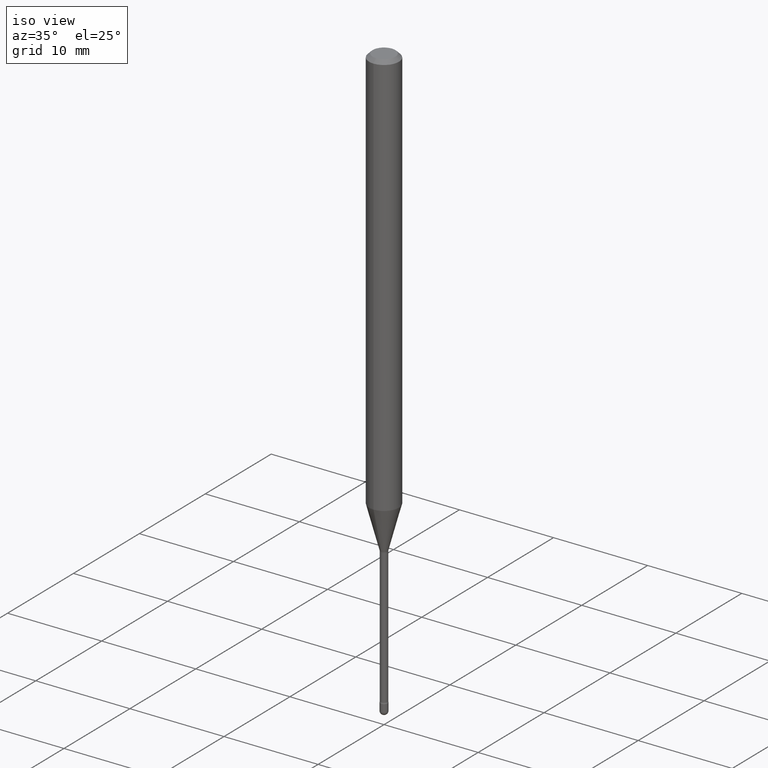
[diagram: clean part render]
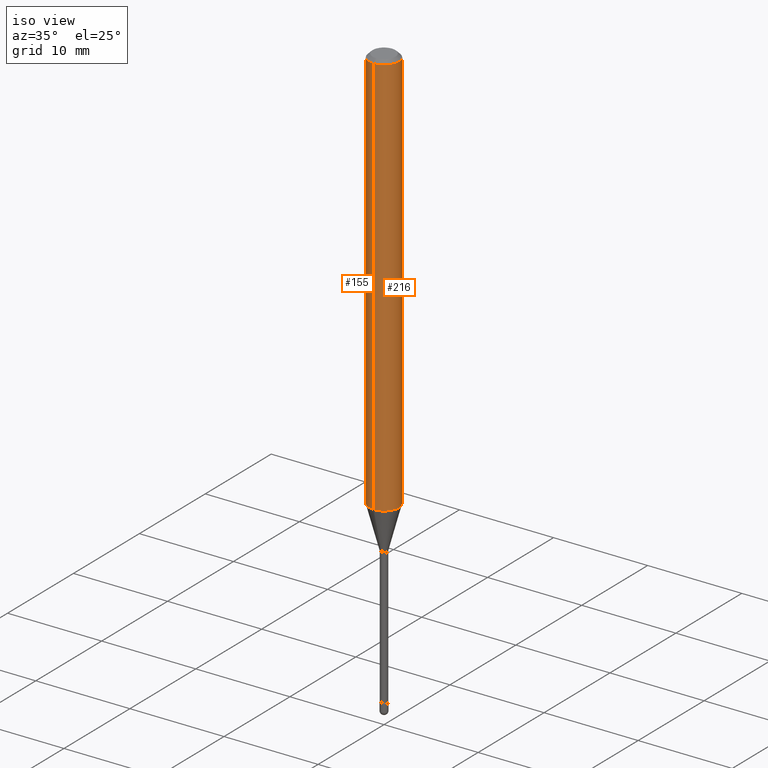
[diagram: same view with one multi-face feature highlighted, each face labeled with its STEP entity id]
A machine part, iso view. The highlighted faces form ONE feature: a constant-radius fillet chain: 2 tangent blend faces with common blend radius 1.5875 mm. The faces share edges in the B-rep.
Their STEP definitions:
[1] entity #216 (Cylinder):
#5 = DIRECTION ( 'NONE',  ( -2.445473815707476510E-29, 3.491474164922030519E-15, 1.000000000000000000 ) ) ;
#6 = DIRECTION ( 'NONE',  ( -2.445473815707476510E-29, 3.491474164922030519E-15, 1.000000000000000000 ) ) ;
#7 = AXIS2_PLACEMENT_3D ( 'NONE', #47, #6, #433 ) ;
#16 = DIRECTION ( 'NONE',  ( -2.445473815707476510E-29, 3.491474164922030519E-15, 1.000000000000000000 ) ) ;
#17 = CIRCLE ( 'NONE', #376, 0.06250000000000000000 ) ;
#40 = EDGE_LOOP ( 'NONE', ( #511, #178, #381, #75 ) ) ;
#47 = CARTESIAN_POINT ( 'NONE',  ( 4.159868743774115107E-29, -5.939165717115708195E-15, -1.701048163777072908 ) ) ;
#57 = FACE_OUTER_BOUND ( 'NONE', #40, .T. ) ;
#72 = VERTEX_POINT ( 'NONE', #434 ) ;
#75 = ORIENTED_EDGE ( 'NONE', *, *, #146, .F. ) ;
#98 = CARTESIAN_POINT ( 'NONE',  ( -4.364351673553916201E-16, -0.06250000000000000000, 6.962905341988730200E-16 ) ) ;
#102 = DIRECTION ( 'NONE',  ( -6.982962677686265922E-15, -1.000000000000000000, 3.483106191921935554E-15 ) ) ;
#104 = VECTOR ( 'NONE', #132, 39.37007874015748143 ) ;
#108 = EDGE_CURVE ( 'NONE', #183, #174, #395, .T. ) ;
#131 = VERTEX_POINT ( 'NONE', #444 ) ;
#132 = DIRECTION ( 'NONE',  ( -2.445473815707476510E-29, 3.491474164922030519E-15, 1.000000000000000000 ) ) ;
#146 = EDGE_CURVE ( 'NONE', #183, #72, #188, .T. ) ;
#161 = CYLINDRICAL_SURFACE ( 'NONE', #436, 0.06250000000000000000 ) ;
#174 = VERTEX_POINT ( 'NONE', #354 ) ;
#178 = ORIENTED_EDGE ( 'NONE', *, *, #398, .T. ) ;
#183 = VERTEX_POINT ( 'NONE', #275 ) ;
#188 = LINE ( 'NONE', #98, #104 ) ;
#196 = CARTESIAN_POINT ( 'NONE',  ( 4.440892098500625669E-16, 0.06250000000000000000, 2.598562635836191558E-16 ) ) ;
#216 = ADVANCED_FACE ( 'NONE', ( #57 ), #161, .T. ) ;
#242 = CARTESIAN_POINT ( 'NONE',  ( 3.668210723561235154E-31, -5.237211247383074400E-17, -0.01500000000000008271 ) ) ;
#275 = CARTESIAN_POINT ( 'NONE',  ( -4.364351673553500570E-16, -0.06250000000000595357, -1.701048163777072464 ) ) ;
#312 = LINE ( 'NONE', #196, #467 ) ;
#339 = CARTESIAN_POINT ( 'NONE',  ( -1.169113584055446105E-44, 1.669184350826100908E-30, 4.780733988912460139E-16 ) ) ;
#354 = CARTESIAN_POINT ( 'NONE',  ( 4.440892098501039328E-16, 0.06249999999999404643, -1.701048163777073130 ) ) ;
#376 = AXIS2_PLACEMENT_3D ( 'NONE', #242, #16, #102 ) ;
#381 = ORIENTED_EDGE ( 'NONE', *, *, #435, .F. ) ;
#395 = CIRCLE ( 'NONE', #7, 0.06250000000000000000 ) ;
#397 = DIRECTION ( 'NONE',  ( -2.445473815707476510E-29, 3.491474164922030519E-15, 1.000000000000000000 ) ) ;
#398 = EDGE_CURVE ( 'NONE', #174, #131, #312, .T. ) ;
#433 = DIRECTION ( 'NONE',  ( -6.982962677686265922E-15, -1.000000000000000000, 4.370956789862821150E-15 ) ) ;
#434 = CARTESIAN_POINT ( 'NONE',  ( -4.364351673553912750E-16, -0.06250000000000005551, -0.01499999999999986587 ) ) ;
#435 = EDGE_CURVE ( 'NONE', #72, #131, #17, .T. ) ;
#436 = AXIS2_PLACEMENT_3D ( 'NONE', #339, #5, #440 ) ;
#440 = DIRECTION ( 'NONE',  ( -6.982962677686265922E-15, -1.000000000000000000, 3.491474164922031308E-15 ) ) ;
#444 = CARTESIAN_POINT ( 'NONE',  ( 4.440892098501044258E-16, 0.06249999999999995143, -0.01500000000000030129 ) ) ;
#467 = VECTOR ( 'NONE', #397, 39.37007874015748143 ) ;
#511 = ORIENTED_EDGE ( 'NONE', *, *, #108, .T. ) ;
[2] entity #155 (Cylinder):
#8 = EDGE_CURVE ( 'NONE', #174, #183, #133, .T. ) ;
#12 = DIRECTION ( 'NONE',  ( -2.445473815707476510E-29, 3.491474164922030519E-15, 1.000000000000000000 ) ) ;
#72 = VERTEX_POINT ( 'NONE', #434 ) ;
#98 = CARTESIAN_POINT ( 'NONE',  ( -4.364351673553916201E-16, -0.06250000000000000000, 6.962905341988730200E-16 ) ) ;
#104 = VECTOR ( 'NONE', #132, 39.37007874015748143 ) ;
#131 = VERTEX_POINT ( 'NONE', #444 ) ;
#132 = DIRECTION ( 'NONE',  ( -2.445473815707476510E-29, 3.491474164922030519E-15, 1.000000000000000000 ) ) ;
#133 = CIRCLE ( 'NONE', #351, 0.06250000000000000000 ) ;
#146 = EDGE_CURVE ( 'NONE', #183, #72, #188, .T. ) ;
#155 = ADVANCED_FACE ( 'NONE', ( #517 ), #486, .T. ) ;
#159 = DIRECTION ( 'NONE',  ( -6.982962677686265922E-15, -1.000000000000000000, 3.483106191921935554E-15 ) ) ;
#174 = VERTEX_POINT ( 'NONE', #354 ) ;
#183 = VERTEX_POINT ( 'NONE', #275 ) ;
#188 = LINE ( 'NONE', #98, #104 ) ;
#196 = CARTESIAN_POINT ( 'NONE',  ( 4.440892098500625669E-16, 0.06250000000000000000, 2.598562635836191558E-16 ) ) ;
#205 = ORIENTED_EDGE ( 'NONE', *, *, #259, .F. ) ;
#245 = CIRCLE ( 'NONE', #278, 0.06250000000000000000 ) ;
#259 = EDGE_CURVE ( 'NONE', #131, #72, #245, .T. ) ;
#275 = CARTESIAN_POINT ( 'NONE',  ( -4.364351673553500570E-16, -0.06250000000000595357, -1.701048163777072464 ) ) ;
#278 = AXIS2_PLACEMENT_3D ( 'NONE', #374, #443, #159 ) ;
#290 = DIRECTION ( 'NONE',  ( -2.445473815707476510E-29, 3.491474164922030519E-15, 1.000000000000000000 ) ) ;
#312 = LINE ( 'NONE', #196, #467 ) ;
#315 = CARTESIAN_POINT ( 'NONE',  ( -1.169113584055446105E-44, 1.669184350826100908E-30, 4.780733988912460139E-16 ) ) ;
#333 = CARTESIAN_POINT ( 'NONE',  ( 4.159868743774115107E-29, -5.939165717115708195E-15, -1.701048163777072908 ) ) ;
#334 = EDGE_LOOP ( 'NONE', ( #525, #472, #345, #205 ) ) ;
#345 = ORIENTED_EDGE ( 'NONE', *, *, #146, .T. ) ;
#351 = AXIS2_PLACEMENT_3D ( 'NONE', #333, #290, #536 ) ;
#354 = CARTESIAN_POINT ( 'NONE',  ( 4.440892098501039328E-16, 0.06249999999999404643, -1.701048163777073130 ) ) ;
#374 = CARTESIAN_POINT ( 'NONE',  ( 3.668210723561235154E-31, -5.237211247383074400E-17, -0.01500000000000008271 ) ) ;
#397 = DIRECTION ( 'NONE',  ( -2.445473815707476510E-29, 3.491474164922030519E-15, 1.000000000000000000 ) ) ;
#398 = EDGE_CURVE ( 'NONE', #174, #131, #312, .T. ) ;
#434 = CARTESIAN_POINT ( 'NONE',  ( -4.364351673553912750E-16, -0.06250000000000005551, -0.01499999999999986587 ) ) ;
#443 = DIRECTION ( 'NONE',  ( -2.445473815707476510E-29, 3.491474164922030519E-15, 1.000000000000000000 ) ) ;
#444 = CARTESIAN_POINT ( 'NONE',  ( 4.440892098501044258E-16, 0.06249999999999995143, -0.01500000000000030129 ) ) ;
#467 = VECTOR ( 'NONE', #397, 39.37007874015748143 ) ;
#472 = ORIENTED_EDGE ( 'NONE', *, *, #8, .T. ) ;
#473 = DIRECTION ( 'NONE',  ( -6.982962677686265922E-15, -1.000000000000000000, 3.491474164922031308E-15 ) ) ;
#486 = CYLINDRICAL_SURFACE ( 'NONE', #537, 0.06250000000000000000 ) ;
#517 = FACE_OUTER_BOUND ( 'NONE', #334, .T. ) ;
#525 = ORIENTED_EDGE ( 'NONE', *, *, #398, .F. ) ;
#536 = DIRECTION ( 'NONE',  ( -6.982962677686265922E-15, -1.000000000000000000, 4.370956789862821150E-15 ) ) ;
#537 = AXIS2_PLACEMENT_3D ( 'NONE', #315, #12, #473 ) ;